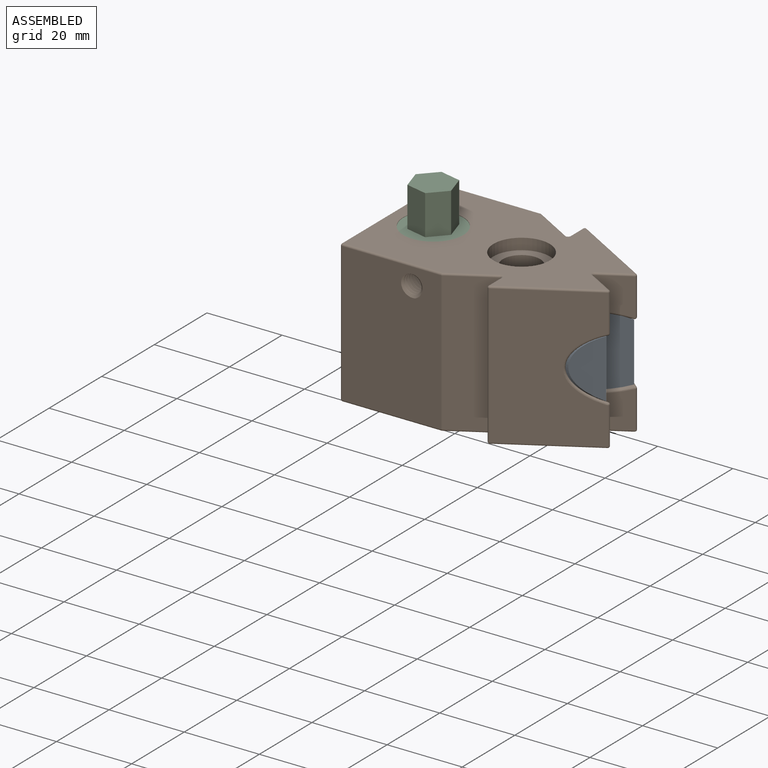
[diagram: assembled view]
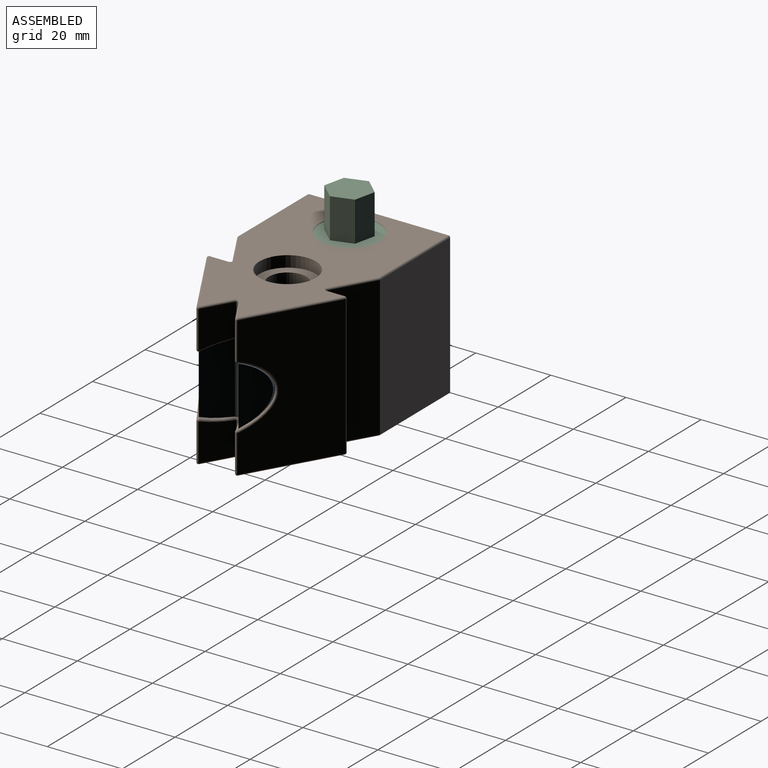
[diagram: assembled view, second angle]
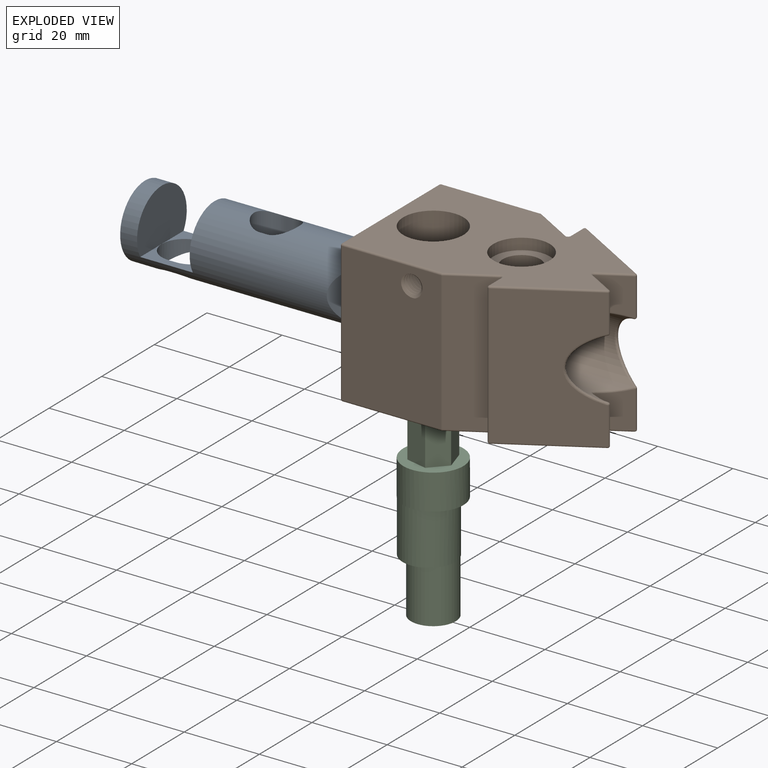
[diagram: exploded view]
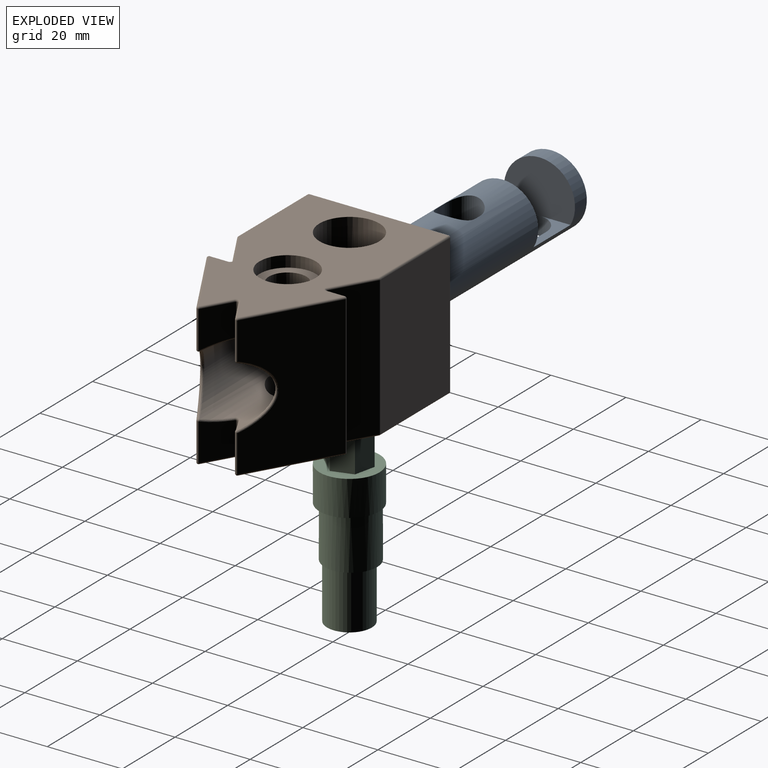
[diagram: exploded view, second angle]
ASSEMBLY  parts=3 mates=2
PART A: 19 faces, bbox 18.9x62.2x18.9 mm
  f0: cylinder r=9.45mm len=62.19mm, axis (0,-1,0), area 2520.4mm2, adj f1,f2,f3,f4,f5,f6,f7,f8
  f1: plane 14x8.28mm, normal (0,0,1), area 47.4mm2, adj f0,f3,f5,f6,f7,f9
  f2: plane 18.9x18.9mm, normal (0,-1,0), area 280.6mm2, adj f0
  f3: plane 18.9x14.05mm, normal (0,1,0), area 223.6mm2, adj f0,f1,f4
  f4: plane 14x8.23mm, normal (0,0,1), area 46.7mm2, adj f0,f3,f5,f7,f8,f9
  f5: plane 18.9x14.05mm, normal (0,-1,0), area 223.6mm2, adj f0,f1,f4
  f6: plane 2.72x2mm, normal (1,0,0), area 5.4mm2, adj f0,f1,f7,f9
  f7: cylinder r=6mm len=12mm, axis (0,0,-1), area 71.8mm2, adj f0,f1,f4,f6,f8
  f8: plane 2.68x2mm, normal (-1,0,0), area 5.4mm2, adj f0,f4,f7,f9
  f9: cylinder r=6mm len=12mm, axis (0,0,-1), area 71.8mm2, adj f0,f1,f4,f6,f8
  f10: plane 16.01x2mm, normal (-1,0,0), area 32mm2, adj f0,f11,f13
  f11: cylinder r=5mm len=18.9mm, axis (0,0,-1), area 274.9mm2, adj f0,f10,f12
  f12: plane 16.07x2mm, normal (1,0,0), area 32.1mm2, adj f0,f11,f13
  f13: cylinder r=5mm len=18.9mm, axis (0,0,-1), area 274.9mm2, adj f0,f10,f12
  f14: plane 15.65x7.19mm, normal (-0.87,0.5,0), area 91.3mm2, adj f0,f15
  f15: plane 18.72x6.93mm, normal (0.87,0.5,0), area 140.3mm2, adj f0,f14,f16
  f16: cylinder r=1.5mm len=18.9mm, axis (0,0,-1), area 59.1mm2, adj f0,f15,f17
  f17: plane 18.72x6.93mm, normal (-0.87,0.5,0), area 140.3mm2, adj f0,f16,f18
  f18: plane 15.65x7.19mm, normal (0.87,0.5,0), area 91.3mm2, adj f0,f17
PART B: 106 faces, bbox 39.1x62.6x38.6 mm
  f0: cylinder r=2.5mm len=5mm, axis (1,0,0), area 20.9mm2, adj f5,f100,f103,f104,f105
  f1: cylinder r=2.5mm len=5mm, axis (1,0,0), area 0.9mm2, adj f2,f20,f103,f104
  f2: cylinder r=2.5mm len=5mm, axis (1,0,0), area 1.6mm2, adj f1,f3,f103,f104
  f3: cylinder r=2.5mm len=5mm, axis (1,0,0), area 1.6mm2, adj f2,f4,f103,f104
  f4: cylinder r=2.5mm len=5mm, axis (1,0,0), area 1.6mm2, adj f3,f5,f103,f104
  f5: cylinder r=2.5mm len=5mm, axis (1,0,0), area 1.6mm2, adj f0,f4,f103,f104
  f6: plane 61.01x37mm, normal (0,0,-1), area 1527.3mm2, adj f25,f29,f30,f33,f37,f41,f42,f47
  f7: plane 61.01x37mm, normal (0,0,1), area 1439.3mm2, adj f22,f23,f35,f44,f45,f52,f58,f59
  f8: cylinder r=9.5mm len=61.51mm, axis (0,-1,0), area 2857.3mm2, adj f19,f22,f27,f28,f29,f66,f67,f77
  f9: plane 9.92x7.4mm, normal (-0.87,0.5,0), area 77.4mm2, adj f68,f69,f83,f84
  f10: plane 9.92x7.4mm, normal (0.87,0.5,0), area 77.4mm2, adj f75,f82,f87,f88
  f11: plane 37x4.91mm, normal (0,-1,0), area 181.6mm2, adj f71,f72,f85,f86
  f12: plane 37x22.32mm, normal (0.87,0.5,0), area 835.4mm2, adj f70,f84,f85,f94,f95,f99
  f13: plane 9.92x7.4mm, normal (-0.87,0.5,0), area 77.4mm2, adj f88,f93,f96,f99
  f14: plane 9.92x7.4mm, normal (0.87,0.5,0), area 77.4mm2, adj f54,f55,f67,f68
  f15: plane 37x22.32mm, normal (-0.87,0.5,0), area 835.4mm2, adj f48,f54,f60,f66,f74,f75
  f16: plane 37x4.91mm, normal (0,-1,0), area 181.6mm2, adj f46,f47,f59,f60
  f17: plane 37x10.83mm, normal (-0.87,0.5,0), area 462.5mm2, adj f36,f37,f45,f46
  f18: plane 37x26.37mm, normal (-1,0,0), area 975.5mm2, adj f30,f34,f35,f36
  f19: plane 37x37mm, normal (0,-1,0), area 1085.5mm2, adj f8,f33,f34,f43,f44
  f20: plane 37.57x26.93mm, normal (1,0,0), area 949.8mm2, adj f1,f42,f43,f57,f58,f103,f104
  f21: plane 37x10.83mm, normal (0.87,0.5,0), area 462.5mm2, adj f56,f57,f72,f73
  f22: cylinder r=8mm len=16mm, axis (0,0,1), area 532.4mm2, adj f7,f8,f101
  f23: cylinder r=7.5mm len=15mm, axis (0,0,1), area 141.4mm2, adj f7,f24
  f24: plane 15x15mm, normal (0,0,1), area 98.2mm2, adj f23,f27
  f25: cylinder r=7.5mm len=15mm, axis (0,0,-1), area 141.4mm2, adj f6,f26
  f26: plane 15x15mm, normal (0,0,-1), area 98.2mm2, adj f25,f28
  f27: cylinder r=5mm len=10mm, axis (0,0,1), area 248.9mm2, adj f8,f24
  f28: cylinder r=5mm len=10mm, axis (0,0,1), area 215.4mm2, adj f8,f26
  f29: cylinder r=6mm len=12mm, axis (0,0,1), area 378.3mm2, adj f6,f8
  f30: cylinder r=0.5mm len=26.37mm, axis (0,1,0), area 20.7mm2, adj f6,f18,f31,f32
  f31: sphere r=0.5mm, area 0.4mm2, adj f30,f33,f34
  f32: sphere r=0.5mm, area 0.1mm2, adj f30,f36,f37
  f33: cylinder r=0.5mm len=37mm, axis (-1,0,0), area 29.1mm2, adj f6,f19,f31,f38
  f34: cylinder r=0.5mm len=37mm, axis (0,0,-1), area 29.1mm2, adj f18,f19,f31,f39
  f35: cylinder r=0.5mm len=26.37mm, axis (0,-1,0), area 20.7mm2, adj f7,f18,f39,f40
  f36: cylinder r=0.5mm len=37mm, axis (0,0,1), area 9.7mm2, adj f17,f18,f32,f40
  f37: cylinder r=0.5mm len=11.08mm, axis (0.5,0.87,0), area 9.8mm2, adj f6,f17,f32,f41
  f38: sphere r=0.5mm, area 0.4mm2, adj f33,f42,f43
  f39: sphere r=0.5mm, area 0.4mm2, adj f34,f35,f44
  f40: sphere r=0.5mm, area 0.1mm2, adj f35,f36,f45
  f41: torus R=1mm, axis (0,0,1), area 1.1mm2, adj f6,f37,f46,f47
  f42: cylinder r=0.5mm len=26.37mm, axis (0,-1,0), area 20.7mm2, adj f6,f20,f38,f50
  f43: cylinder r=0.5mm len=37mm, axis (0,0,-1), area 29.1mm2, adj f19,f20,f38,f51
  f44: cylinder r=0.5mm len=37mm, axis (1,0,0), area 29.1mm2, adj f7,f19,f39,f51
  f45: cylinder r=0.5mm len=11.08mm, axis (-0.5,-0.87,0), area 9.8mm2, adj f7,f17,f40,f52
  f46: cylinder r=0.5mm len=37mm, axis (0,0,-1), area 38.7mm2, adj f16,f17,f41,f52
  f47: cylinder r=0.5mm len=4.91mm, axis (-1,0,0), area 3.9mm2, adj f6,f16,f41,f53
  f48: cylinder r=0.5mm len=22.57mm, axis (0.5,0.87,0), area 20.2mm2, adj f6,f15,f49,f53
  f49: sphere r=0.5mm, area 0.4mm2, adj f48,f54,f55
  f50: sphere r=0.5mm, area 0.1mm2, adj f42,f56,f57
  f51: sphere r=0.5mm, area 0.4mm2, adj f43,f44,f58
  f52: torus R=1mm, axis (0,0,1), area 1.1mm2, adj f7,f45,f46,f59
  f53: sphere r=0.5mm, area 0.6mm2, adj f47,f48,f60
  f54: cylinder r=0.5mm len=9.92mm, axis (0,0,1), area 10.4mm2, adj f14,f15,f49,f61
  f55: cylinder r=0.5mm len=7.65mm, axis (0.5,-0.87,0), area 6.7mm2, adj f6,f14,f49,f62
  f56: cylinder r=0.5mm len=11.08mm, axis (0.5,-0.87,0), area 9.8mm2, adj f6,f21,f50,f63
  f57: cylinder r=0.5mm len=37mm, axis (0,0,1), area 9.7mm2, adj f20,f21,f50,f64
  f58: cylinder r=0.5mm len=26.37mm, axis (0,1,0), area 20.7mm2, adj f7,f20,f51,f64
  f59: cylinder r=0.5mm len=4.91mm, axis (1,0,0), area 3.9mm2, adj f7,f16,f52,f65
  f60: cylinder r=0.5mm len=37mm, axis (0,0,1), area 38.7mm2, adj f15,f16,f53,f65
  f61: sphere r=0.5mm, area 0.5mm2, adj f54,f66,f67
  f62: torus R=1mm, axis (0,0,1), area 1.1mm2, adj f6,f55,f68,f69
  f63: torus R=1mm, axis (0,0,1), area 1.1mm2, adj f6,f56,f71,f72
  f64: sphere r=0.5mm, area 0.1mm2, adj f57,f58,f73
  f65: sphere r=0.5mm, area 0.4mm2, adj f59,f60,f74
  f66: bspline ~17.16x8.69mm, area 31.4mm2, adj f8,f15,f61,f76
  f67: bspline ~7.65x4.45mm, area 5.6mm2, adj f8,f14,f61,f77
  f68: cylinder r=0.5mm len=8.54mm, axis (0,0,-1), area 8.9mm2, adj f9,f14,f62,f77
  f69: cylinder r=0.5mm len=7.65mm, axis (0.5,0.87,0), area 6.7mm2, adj f6,f9,f62,f78
  f70: cylinder r=0.5mm len=22.57mm, axis (0.5,-0.87,0), area 20.2mm2, adj f6,f12,f78,f79
  f71: cylinder r=0.5mm len=4.91mm, axis (-1,0,0), area 3.9mm2, adj f6,f11,f63,f79
  f72: cylinder r=0.5mm len=37mm, axis (0,0,-1), area 38.7mm2, adj f11,f21,f63,f80
  f73: cylinder r=0.5mm len=11.08mm, axis (-0.5,0.87,0), area 9.8mm2, adj f7,f21,f64,f80
  f74: cylinder r=0.5mm len=22.57mm, axis (-0.5,-0.87,0), area 20.2mm2, adj f7,f15,f65,f81
  f75: cylinder r=0.5mm len=9.92mm, axis (0,0,1), area 10.4mm2, adj f10,f15,f76,f81
  f76: sphere r=0.5mm, area 0.5mm2, adj f66,f75,f82
  f77: bspline ~1.8x0.85mm, area 1.1mm2, adj f8,f67,f68,f83
  f78: sphere r=0.5mm, area 0.4mm2, adj f69,f70,f84
  f79: sphere r=0.5mm, area 0.5mm2, adj f70,f71,f85
  f80: torus R=1mm, axis (0,0,1), area 1.1mm2, adj f7,f72,f73,f86
  f81: sphere r=0.5mm, area 0.5mm2, adj f74,f75,f87
  f82: bspline ~7.65x4.45mm, area 5.6mm2, adj f8,f10,f76,f89
  f83: bspline ~7.65x4.45mm, area 5.6mm2, adj f8,f9,f77,f90
  f84: cylinder r=0.5mm len=9.92mm, axis (0,0,1), area 10.4mm2, adj f9,f12,f78,f90
  f85: cylinder r=0.5mm len=37mm, axis (0,0,1), area 38.7mm2, adj f11,f12,f79,f91
  f86: cylinder r=0.5mm len=4.91mm, axis (1,0,0), area 3.9mm2, adj f7,f11,f80,f91
  f87: cylinder r=0.5mm len=7.65mm, axis (-0.5,0.87,0), area 6.7mm2, adj f7,f10,f81,f92
  f88: cylinder r=0.5mm len=8.54mm, axis (0,0,-1), area 8.9mm2, adj f10,f13,f89,f92
  f89: bspline ~1.8x0.85mm, area 1.1mm2, adj f8,f82,f88,f93
  f90: sphere r=0.5mm, area 0.5mm2, adj f83,f84,f94
  f91: sphere r=0.5mm, area 0.6mm2, adj f85,f86,f95
  f92: torus R=1mm, axis (0,0,1), area 1.1mm2, adj f7,f87,f88,f96
  f93: bspline ~7.65x4.45mm, area 5.6mm2, adj f8,f13,f89,f97
  f94: bspline ~17.16x8.69mm, area 31.4mm2, adj f8,f12,f90,f97
  f95: cylinder r=0.5mm len=22.57mm, axis (-0.5,0.87,0), area 20.2mm2, adj f7,f12,f91,f98
  f96: cylinder r=0.5mm len=7.65mm, axis (-0.5,-0.87,0), area 6.7mm2, adj f7,f13,f92,f98
  f97: sphere r=0.5mm, area 0.5mm2, adj f93,f94,f99
  f98: sphere r=0.5mm, area 0.6mm2, adj f95,f96,f99
  f99: cylinder r=0.5mm len=9.92mm, axis (0,0,1), area 10.4mm2, adj f12,f13,f97,f98
  f100: plane 5x5mm, normal (1,0,0), area 7.1mm2, adj f0,f101
  f101: cylinder r=2mm len=28mm, axis (1,0,0), area 690.5mm2, adj f22,f100,f102
  f102: plane 4x4mm, normal (1,0,0), area 12.6mm2, adj f101
  f103: bspline ~6.7x6.55mm, area 98.3mm2, adj f0,f1,f2,f3,f4,f5,f20,f104
  f104: bspline ~7.57x6.56mm, area 91.4mm2, adj f0,f1,f2,f3,f4,f5,f20,f103
  f105: plane 0.9x0.78mm, normal (0,0,1), area 0.4mm2, adj f0,f103,f104
PART C: 14 faces, bbox 16x16x48.5 mm
  f0: cylinder r=5.95mm len=14.4mm, axis (0,0,1), area 538.3mm2, adj f1,f3
  f1: plane 11.9x11.9mm, normal (0,0,-1), area 111.2mm2, adj f0
  f2: cylinder r=7mm len=14.1mm, axis (0,0,-1), area 620.2mm2, adj f3,f4
  f3: plane 14x14mm, normal (0,0,-1), area 42.7mm2, adj f0,f2
  f4: plane 16x16mm, normal (0,0,-1), area 47.1mm2, adj f2,f5
  f5: cylinder r=8mm len=16mm, axis (0,0,-1), area 472.5mm2, adj f4,f6
  f6: plane 16x16mm, normal (0,0,1), area 114.5mm2, adj f5,f7,f8,f9,f10,f11,f12
  f7: plane 10.6x5mm, normal (-0.87,-0.5,0), area 61.2mm2, adj f6,f8,f12,f13
  f8: plane 10.6x5.77mm, normal (0,-1,0), area 61.2mm2, adj f6,f7,f9,f13
  f9: plane 10.6x5mm, normal (0.87,-0.5,0), area 61.2mm2, adj f6,f8,f10,f13
  f10: plane 10.6x5mm, normal (0.87,0.5,0), area 61.2mm2, adj f6,f9,f11,f13
  f11: plane 10.6x5.77mm, normal (0,1,0), area 61.2mm2, adj f6,f10,f12,f13
  f12: plane 10.6x5mm, normal (-0.87,0.5,0), area 61.2mm2, adj f6,f7,f11,f13
  f13: plane 11.55x10mm, normal (0,0,1), area 86.6mm2, adj f7,f8,f9,f10,f11,f12
PLACE A rot(axis=(0,0,-1),90deg) t=(-61.05,-32.13,-82.75)mm
PLACE B rot(axis=(0,0,-1),90deg) t=(-33.09,-41.58,-73.3)mm fixed
PLACE C rot(axis=(0,0,1),107.1deg) t=(-52.53,-49.01,-77.9)mm
MATE revolute C.f0 <-> B.f22  axis (0,0,-1) through (-48.59,-41.58,-92.3)mm
MATE slider A.f0 <-> B.f8  axis (-1,0,0) through (-61.05,-41.58,-73.3)mm
